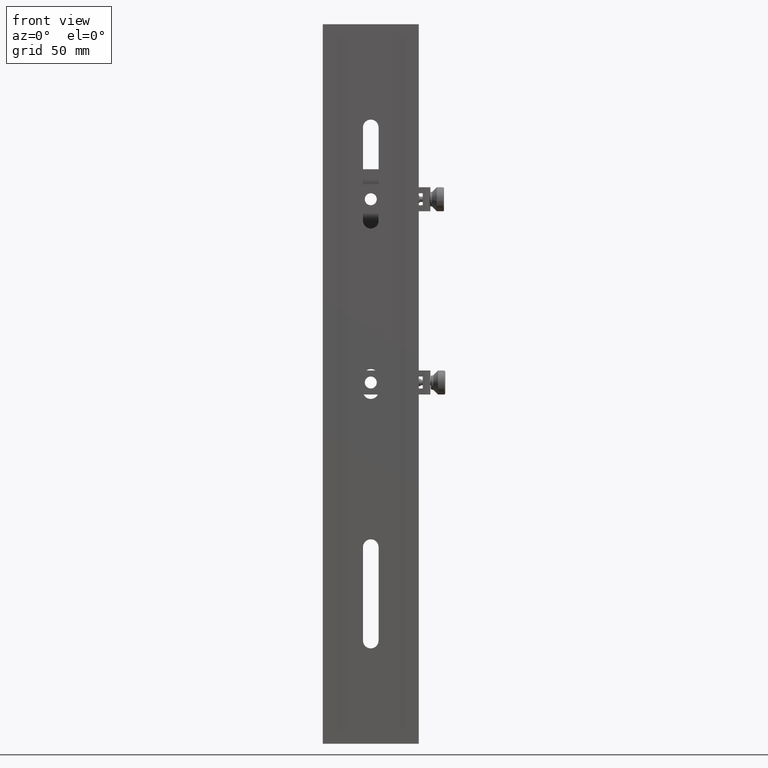
[diagram: clean part render]
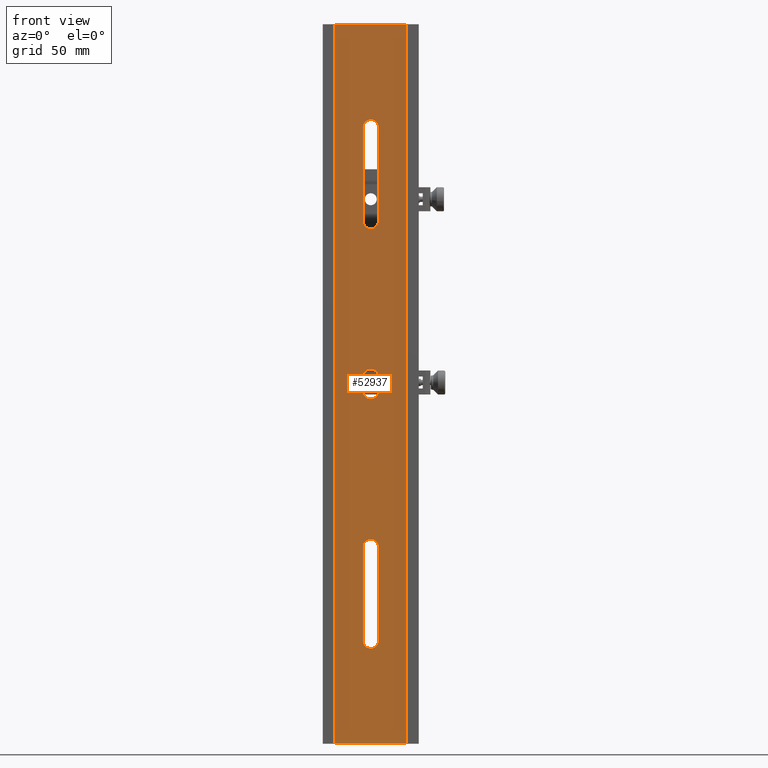
[diagram: same view with one face highlighted and labeled with its STEP entity id]
A machine part, front view. The second image highlights one B-rep face of the part: STEP entity #52937.
In plain terms, the highlighted planar face has unit normal (0, -1, 0).
Its self-contained STEP definition (entity closure, byte-faithful):
#796 = VERTEX_POINT ( 'NONE', #11372 ) ;
#827 = CARTESIAN_POINT ( 'NONE',  ( -3.232027340671374537E-15, -6.000000000000000000, -3.000000000000000000 ) ) ;
#1917 = CARTESIAN_POINT ( 'NONE',  ( -2.129845221438755048E-15, -6.000000000000000000, 3.000000000000000000 ) ) ;
#3757 = VECTOR ( 'NONE', #93084, 1000.000000000000000 ) ;
#6608 = CARTESIAN_POINT ( 'NONE',  ( -3.250000000000000000, -6.000000000000000000, 5.970153145843309876E-16 ) ) ;
#7723 = VERTEX_POINT ( 'NONE', #52428 ) ;
#7931 = CIRCLE ( 'NONE', #60164, 3.250000000000000000 ) ;
#8358 = DIRECTION ( 'NONE',  ( 0.000000000000000000, -1.000000000000000000, 0.000000000000000000 ) ) ;
#8406 = VECTOR ( 'NONE', #107381, 1000.000000000000000 ) ;
#9123 = AXIS2_PLACEMENT_3D ( 'NONE', #21464, #21985, #29082 ) ;
#9335 = CARTESIAN_POINT ( 'NONE',  ( -3.250000000000000000, -6.000000000000000000, -68.00000000000000000 ) ) ;
#10523 = DIRECTION ( 'NONE',  ( 1.000000000000000000, 0.000000000000000000, 0.000000000000000000 ) ) ;
#10531 = LINE ( 'NONE', #51414, #97241 ) ;
#11028 = LINE ( 'NONE', #63320, #81769 ) ;
#11372 = CARTESIAN_POINT ( 'NONE',  ( -15.00000000000000000, -6.000000000000000000, 150.0000000000000000 ) ) ;
#11821 = EDGE_CURVE ( 'NONE', #43325, #53869, #56121, .T. ) ;
#11829 = CIRCLE ( 'NONE', #95291, 3.250000000000000000 ) ;
#12064 = DIRECTION ( 'NONE',  ( 1.236303256585105793E-16, 0.000000000000000000, -1.000000000000000000 ) ) ;
#13736 = DIRECTION ( 'NONE',  ( 0.000000000000000000, -1.000000000000000000, 0.000000000000000000 ) ) ;
#15971 = VERTEX_POINT ( 'NONE', #42610 ) ;
#16271 = CARTESIAN_POINT ( 'NONE',  ( 3.250000000000000000, -6.000000000000000000, -5.970153145843329598E-16 ) ) ;
#17725 = DIRECTION ( 'NONE',  ( 1.000000000000000000, 0.000000000000000000, 0.000000000000000000 ) ) ;
#18417 = FACE_BOUND ( 'NONE', #21906, .T. ) ;
#20864 = VECTOR ( 'NONE', #70780, 1000.000000000000000 ) ;
#21105 = VECTOR ( 'NONE', #12064, 1000.000000000000000 ) ;
#21464 = CARTESIAN_POINT ( 'NONE',  ( -3.582091887506009394E-15, -6.000000000000000000, 68.00000000000000000 ) ) ;
#21906 = EDGE_LOOP ( 'NONE', ( #73993, #51375, #102986, #71319 ) ) ;
#21985 = DIRECTION ( 'NONE',  ( 0.000000000000000000, -1.000000000000000000, 0.000000000000000000 ) ) ;
#23154 = CARTESIAN_POINT ( 'NONE',  ( 3.250000000000000000, -6.000000000000000000, 107.0000000000000000 ) ) ;
#23559 = CARTESIAN_POINT ( 'NONE',  ( -3.250000000000000000, -6.000000000000000000, -3.000000000000000000 ) ) ;
#25229 = ORIENTED_EDGE ( 'NONE', *, *, #68613, .T. ) ;
#25272 = CARTESIAN_POINT ( 'NONE',  ( 3.582091887506009394E-15, -6.000000000000000000, 107.0000000000000000 ) ) ;
#25906 = AXIS2_PLACEMENT_3D ( 'NONE', #827, #107104, #17725 ) ;
#26620 = DIRECTION ( 'NONE',  ( 0.000000000000000000, -1.000000000000000000, 0.000000000000000000 ) ) ;
#27553 = CARTESIAN_POINT ( 'NONE',  ( -2.407148620655124556E-16, -6.000000000000000000, -150.0000000000000000 ) ) ;
#28296 = LINE ( 'NONE', #61528, #20864 ) ;
#28414 = ORIENTED_EDGE ( 'NONE', *, *, #92360, .T. ) ;
#29082 = DIRECTION ( 'NONE',  ( 1.000000000000000000, 0.000000000000000000, 0.000000000000000000 ) ) ;
#30268 = DIRECTION ( 'NONE',  ( 1.000000000000000000, 0.000000000000000000, 0.000000000000000000 ) ) ;
#31305 = CARTESIAN_POINT ( 'NONE',  ( 15.00000000000000000, -6.000000000000000000, -150.0000000000000000 ) ) ;
#32299 = VERTEX_POINT ( 'NONE', #23154 ) ;
#32705 = ORIENTED_EDGE ( 'NONE', *, *, #101483, .F. ) ;
#34766 = AXIS2_PLACEMENT_3D ( 'NONE', #25272, #8358, #10523 ) ;
#34912 = LINE ( 'NONE', #60505, #44397 ) ;
#34936 = CARTESIAN_POINT ( 'NONE',  ( 3.250000000000000000, -6.000000000000000000, 68.00000000000000000 ) ) ;
#35176 = DIRECTION ( 'NONE',  ( 0.000000000000000000, -1.000000000000000000, 0.000000000000000000 ) ) ;
#35744 = DIRECTION ( 'NONE',  ( 1.000000000000000000, 0.000000000000000000, 0.000000000000000000 ) ) ;
#37090 = LINE ( 'NONE', #68723, #50080 ) ;
#38051 = EDGE_CURVE ( 'NONE', #82683, #95797, #34912, .T. ) ;
#40339 = CARTESIAN_POINT ( 'NONE',  ( -15.00000000000000000, -6.000000000000000000, -150.0000000000000000 ) ) ;
#41249 = CIRCLE ( 'NONE', #91655, 3.250000000000000000 ) ;
#41282 = CARTESIAN_POINT ( 'NONE',  ( 3.250000000000000000, -6.000000000000000000, -3.000000000000000000 ) ) ;
#42511 = ORIENTED_EDGE ( 'NONE', *, *, #38051, .F. ) ;
#42610 = CARTESIAN_POINT ( 'NONE',  ( 3.250000000000000000, -6.000000000000000000, 3.000000000000000000 ) ) ;
#43325 = VERTEX_POINT ( 'NONE', #74146 ) ;
#44397 = VECTOR ( 'NONE', #61590, 1000.000000000000000 ) ;
#44698 = DIRECTION ( 'NONE',  ( -1.836970198721029688E-16, 0.000000000000000000, -1.000000000000000000 ) ) ;
#48388 = ORIENTED_EDGE ( 'NONE', *, *, #11821, .F. ) ;
#49066 = VERTEX_POINT ( 'NONE', #50448 ) ;
#49576 = VERTEX_POINT ( 'NONE', #41282 ) ;
#49707 = EDGE_LOOP ( 'NONE', ( #32705, #28414, #79370, #42511 ) ) ;
#49876 = EDGE_CURVE ( 'NONE', #95797, #49576, #85103, .T. ) ;
#50080 = VECTOR ( 'NONE', #44698, 1000.000000000000000 ) ;
#50448 = CARTESIAN_POINT ( 'NONE',  ( 3.250000000000000000, -6.000000000000000000, -68.00000000000000000 ) ) ;
#51375 = ORIENTED_EDGE ( 'NONE', *, *, #78623, .T. ) ;
#51414 = CARTESIAN_POINT ( 'NONE',  ( 15.00000000000000000, -6.000000000000000000, 294.6622748219315326 ) ) ;
#51888 = VERTEX_POINT ( 'NONE', #31305 ) ;
#52428 = CARTESIAN_POINT ( 'NONE',  ( 3.250000000000000000, -6.000000000000000000, -107.0000000000000000 ) ) ;
#52937 = ADVANCED_FACE ( 'NONE', ( #91979, #60907, #18417, #100696 ), #66946, .T. ) ;
#53497 = CARTESIAN_POINT ( 'NONE',  ( -15.00000000000000000, -6.000000000000000000, 294.6622748219315326 ) ) ;
#53643 = EDGE_CURVE ( 'NONE', #32299, #66692, #73039, .T. ) ;
#53869 = VERTEX_POINT ( 'NONE', #34936 ) ;
#56121 = CIRCLE ( 'NONE', #9123, 3.250000000000000000 ) ;
#56327 = VERTEX_POINT ( 'NONE', #85666 ) ;
#58422 = VECTOR ( 'NONE', #35744, 1000.000000000000000 ) ;
#58810 = EDGE_CURVE ( 'NONE', #66692, #43325, #37090, .T. ) ;
#59305 = CARTESIAN_POINT ( 'NONE',  ( 0.000000000000000000, -6.000000000000000000, 0.000000000000000000 ) ) ;
#60164 = AXIS2_PLACEMENT_3D ( 'NONE', #70998, #13736, #63363 ) ;
#60505 = CARTESIAN_POINT ( 'NONE',  ( -3.250000000000000000, -6.000000000000000000, 5.970153145843350305E-16 ) ) ;
#60907 = FACE_BOUND ( 'NONE', #49707, .T. ) ;
#61169 = DIRECTION ( 'NONE',  ( 1.000000000000000000, 0.000000000000000000, 0.000000000000000000 ) ) ;
#61528 = CARTESIAN_POINT ( 'NONE',  ( 3.250000000000000000, -6.000000000000000000, -5.970153145843369041E-16 ) ) ;
#61590 = DIRECTION ( 'NONE',  ( -1.836970198721029688E-16, 0.000000000000000000, -1.000000000000000000 ) ) ;
#62429 = DIRECTION ( 'NONE',  ( 0.000000000000000000, -1.000000000000000000, 0.000000000000000000 ) ) ;
#62747 = EDGE_CURVE ( 'NONE', #107840, #51888, #92956, .T. ) ;
#63320 = CARTESIAN_POINT ( 'NONE',  ( -2.407148620655124556E-16, -6.000000000000000000, 150.0000000000000000 ) ) ;
#63363 = DIRECTION ( 'NONE',  ( 1.000000000000000000, 0.000000000000000000, 0.000000000000000000 ) ) ;
#63532 = VERTEX_POINT ( 'NONE', #9335 ) ;
#66692 = VERTEX_POINT ( 'NONE', #77311 ) ;
#66946 = PLANE ( 'NONE',  #99307 ) ;
#68613 = EDGE_CURVE ( 'NONE', #32299, #53869, #69775, .T. ) ;
#68723 = CARTESIAN_POINT ( 'NONE',  ( -3.250000000000000000, -6.000000000000000000, 5.970153145843369041E-16 ) ) ;
#69230 = EDGE_CURVE ( 'NONE', #95708, #7723, #7931, .T. ) ;
#69775 = LINE ( 'NONE', #95887, #93128 ) ;
#70039 = ORIENTED_EDGE ( 'NONE', *, *, #58810, .F. ) ;
#70780 = DIRECTION ( 'NONE',  ( -1.836970198721029688E-16, 0.000000000000000000, -1.000000000000000000 ) ) ;
#70998 = CARTESIAN_POINT ( 'NONE',  ( -3.582091887506009394E-15, -6.000000000000000000, -107.0000000000000000 ) ) ;
#71319 = ORIENTED_EDGE ( 'NONE', *, *, #88007, .F. ) ;
#73039 = CIRCLE ( 'NONE', #34766, 3.250000000000000000 ) ;
#73993 = ORIENTED_EDGE ( 'NONE', *, *, #82468, .F. ) ;
#74146 = CARTESIAN_POINT ( 'NONE',  ( -3.250000000000000000, -6.000000000000000000, 68.00000000000000000 ) ) ;
#74392 = EDGE_LOOP ( 'NONE', ( #48388, #70039, #88976, #25229 ) ) ;
#76039 = DIRECTION ( 'NONE',  ( 1.000000000000000000, 0.000000000000000000, 0.000000000000000000 ) ) ;
#77311 = CARTESIAN_POINT ( 'NONE',  ( -3.250000000000000000, -6.000000000000000000, 107.0000000000000000 ) ) ;
#77577 = CARTESIAN_POINT ( 'NONE',  ( -3.250000000000000000, -6.000000000000000000, -107.0000000000000000 ) ) ;
#78623 = EDGE_CURVE ( 'NONE', #49066, #7723, #28296, .T. ) ;
#79370 = ORIENTED_EDGE ( 'NONE', *, *, #49876, .F. ) ;
#81271 = LINE ( 'NONE', #6608, #8406 ) ;
#81769 = VECTOR ( 'NONE', #61169, 1000.000000000000000 ) ;
#82468 = EDGE_CURVE ( 'NONE', #49066, #63532, #41249, .T. ) ;
#82683 = VERTEX_POINT ( 'NONE', #103177 ) ;
#84419 = EDGE_LOOP ( 'NONE', ( #85816, #97464, #97135, #96266 ) ) ;
#85103 = CIRCLE ( 'NONE', #25906, 3.250000000000000000 ) ;
#85441 = DIRECTION ( 'NONE',  ( 0.000000000000000000, 0.000000000000000000, -1.000000000000000000 ) ) ;
#85666 = CARTESIAN_POINT ( 'NONE',  ( 15.00000000000000000, -6.000000000000000000, 150.0000000000000000 ) ) ;
#85816 = ORIENTED_EDGE ( 'NONE', *, *, #107090, .T. ) ;
#86937 = CARTESIAN_POINT ( 'NONE',  ( 3.582091887506009394E-15, -6.000000000000000000, -68.00000000000000000 ) ) ;
#88007 = EDGE_CURVE ( 'NONE', #63532, #95708, #81271, .T. ) ;
#88976 = ORIENTED_EDGE ( 'NONE', *, *, #53643, .F. ) ;
#90693 = EDGE_CURVE ( 'NONE', #796, #56327, #11028, .T. ) ;
#91655 = AXIS2_PLACEMENT_3D ( 'NONE', #86937, #62429, #30268 ) ;
#91979 = FACE_OUTER_BOUND ( 'NONE', #84419, .T. ) ;
#92360 = EDGE_CURVE ( 'NONE', #15971, #49576, #107797, .T. ) ;
#92956 = LINE ( 'NONE', #27553, #58422 ) ;
#93084 = DIRECTION ( 'NONE',  ( -1.836970198721029688E-16, 0.000000000000000000, -1.000000000000000000 ) ) ;
#93128 = VECTOR ( 'NONE', #95341, 1000.000000000000000 ) ;
#93817 = LINE ( 'NONE', #53497, #21105 ) ;
#93878 = DIRECTION ( 'NONE',  ( -1.236303256585105793E-16, 0.000000000000000000, 1.000000000000000000 ) ) ;
#95291 = AXIS2_PLACEMENT_3D ( 'NONE', #1917, #35176, #76039 ) ;
#95341 = DIRECTION ( 'NONE',  ( -1.836970198721029688E-16, 0.000000000000000000, -1.000000000000000000 ) ) ;
#95708 = VERTEX_POINT ( 'NONE', #77577 ) ;
#95797 = VERTEX_POINT ( 'NONE', #23559 ) ;
#95887 = CARTESIAN_POINT ( 'NONE',  ( 3.250000000000000000, -6.000000000000000000, -5.970153145843309876E-16 ) ) ;
#96266 = ORIENTED_EDGE ( 'NONE', *, *, #90693, .F. ) ;
#97135 = ORIENTED_EDGE ( 'NONE', *, *, #103350, .T. ) ;
#97241 = VECTOR ( 'NONE', #93878, 1000.000000000000000 ) ;
#97464 = ORIENTED_EDGE ( 'NONE', *, *, #62747, .T. ) ;
#99307 = AXIS2_PLACEMENT_3D ( 'NONE', #59305, #26620, #85441 ) ;
#100696 = FACE_BOUND ( 'NONE', #74392, .T. ) ;
#101483 = EDGE_CURVE ( 'NONE', #15971, #82683, #11829, .T. ) ;
#102986 = ORIENTED_EDGE ( 'NONE', *, *, #69230, .F. ) ;
#103177 = CARTESIAN_POINT ( 'NONE',  ( -3.250000000000000000, -6.000000000000000000, 3.000000000000000000 ) ) ;
#103350 = EDGE_CURVE ( 'NONE', #51888, #56327, #10531, .T. ) ;
#107090 = EDGE_CURVE ( 'NONE', #796, #107840, #93817, .T. ) ;
#107104 = DIRECTION ( 'NONE',  ( 0.000000000000000000, -1.000000000000000000, 0.000000000000000000 ) ) ;
#107381 = DIRECTION ( 'NONE',  ( -1.836970198721029688E-16, 0.000000000000000000, -1.000000000000000000 ) ) ;
#107797 = LINE ( 'NONE', #16271, #3757 ) ;
#107840 = VERTEX_POINT ( 'NONE', #40339 ) ;